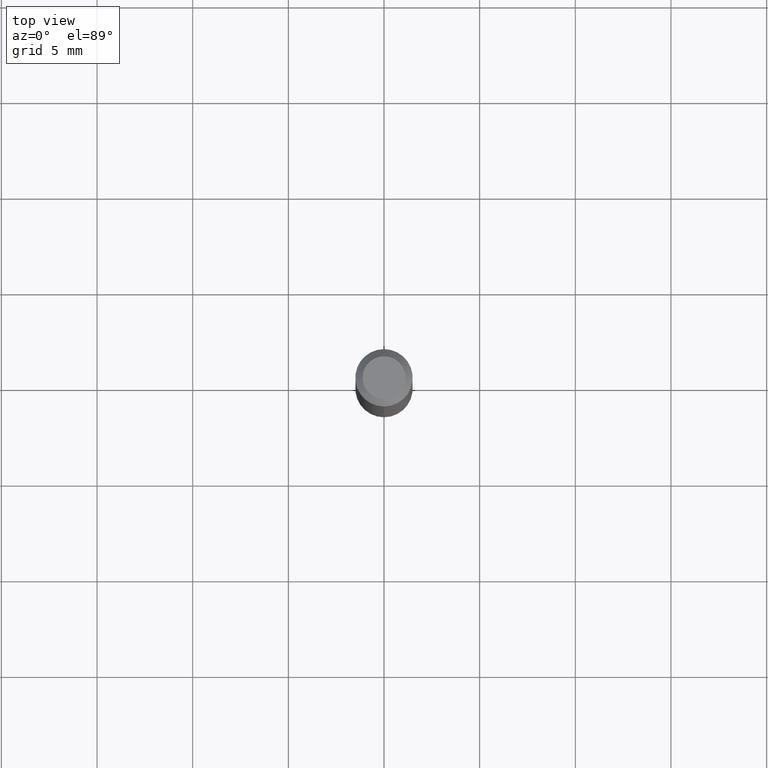
[diagram: clean part render]
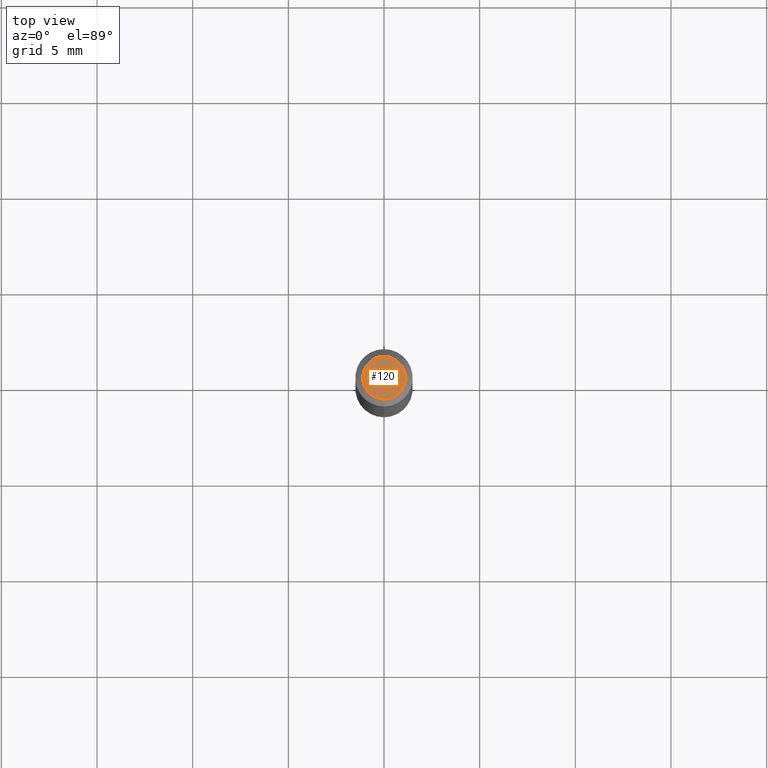
[diagram: same view with one face highlighted and labeled with its STEP entity id]
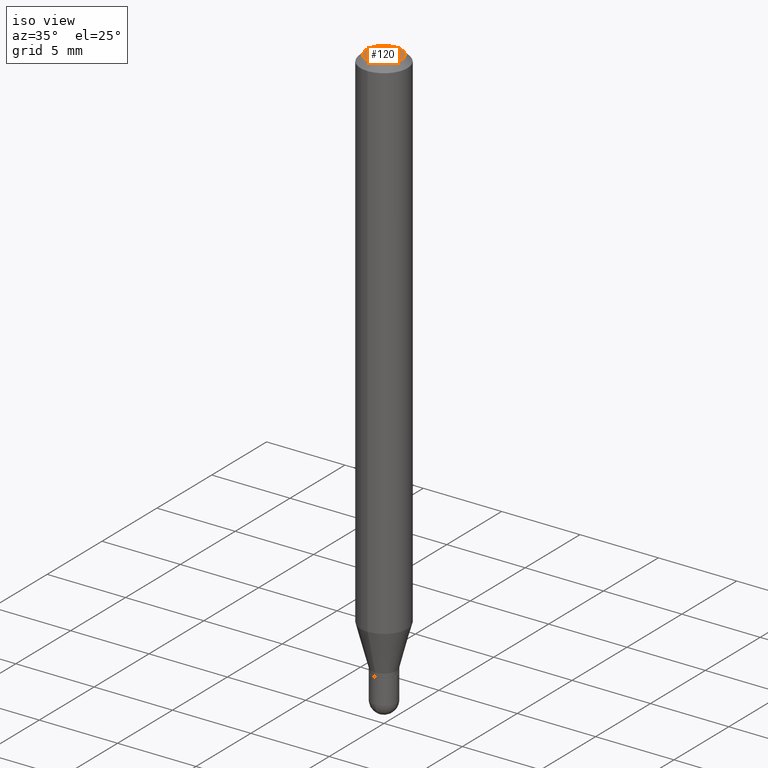
[diagram: same view with one face highlighted and labeled with its STEP entity id]
A machine part, top view. The second image highlights one B-rep face of the part: STEP entity #120.
A second angle (iso view) of the same face is appended — the face is thin or edge-on in the first view.
In plain terms, the highlighted planar face has unit normal (0, -0, -1).
Its self-contained STEP definition (entity closure, byte-faithful):
#24 = DIRECTION ( 'NONE',  ( -6.982962677686265133E-15, -1.000000000000000000, 3.491461542742673984E-15 ) ) ;
#27 = AXIS2_PLACEMENT_3D ( 'NONE', #374, #136, #218 ) ;
#41 = EDGE_LOOP ( 'NONE', ( #198, #385 ) ) ;
#51 = CARTESIAN_POINT ( 'NONE',  ( -3.536586717851222218E-16, -0.04404999999999999888, 6.213319602340940771E-17 ) ) ;
#109 = DIRECTION ( 'NONE',  ( -2.445482629728212427E-29, 3.491461542742673984E-15, 1.000000000000000000 ) ) ;
#116 = VERTEX_POINT ( 'NONE', #418 ) ;
#120 = ADVANCED_FACE ( 'NONE', ( #215 ), #453, .F. ) ;
#136 = DIRECTION ( 'NONE',  ( 2.445482629728212147E-29, -3.491461542742673590E-15, -1.000000000000000000 ) ) ;
#198 = ORIENTED_EDGE ( 'NONE', *, *, #454, .T. ) ;
#211 = CIRCLE ( 'NONE', #388, 0.04404999999999999888 ) ;
#215 = FACE_OUTER_BOUND ( 'NONE', #41, .T. ) ;
#218 = DIRECTION ( 'NONE',  ( 6.982962677686265922E-15, 1.000000000000000000, -3.491461542742673590E-15 ) ) ;
#374 = CARTESIAN_POINT ( 'NONE',  ( 3.075995059520799729E-16, 0.04404999999999999888, -1.996317234250174466E-16 ) ) ;
#376 = DIRECTION ( 'NONE',  ( -6.982962677686265133E-15, -1.000000000000000000, 3.491461542742673984E-15 ) ) ;
#384 = DIRECTION ( 'NONE',  ( -2.445482629728212427E-29, 3.491461542742673984E-15, 1.000000000000000000 ) ) ;
#385 = ORIENTED_EDGE ( 'NONE', *, *, #426, .T. ) ;
#387 = VERTEX_POINT ( 'NONE', #51 ) ;
#388 = AXIS2_PLACEMENT_3D ( 'NONE', #425, #384, #376 ) ;
#418 = CARTESIAN_POINT ( 'NONE',  ( 3.599717260347271507E-16, 0.04404999999999999888, -2.454645658922201386E-16 ) ) ;
#425 = CARTESIAN_POINT ( 'NONE',  ( 2.241668402492273798E-45, -3.200472137376428454E-31, -9.166568493440535928E-17 ) ) ;
#426 = EDGE_CURVE ( 'NONE', #387, #116, #211, .T. ) ;
#452 = AXIS2_PLACEMENT_3D ( 'NONE', #463, #109, #24 ) ;
#453 = PLANE ( 'NONE',  #27 ) ;
#454 = EDGE_CURVE ( 'NONE', #116, #387, #498, .T. ) ;
#463 = CARTESIAN_POINT ( 'NONE',  ( 2.241668402492273798E-45, -3.200472137376428454E-31, -9.166568493440535928E-17 ) ) ;
#498 = CIRCLE ( 'NONE', #452, 0.04404999999999999888 ) ;